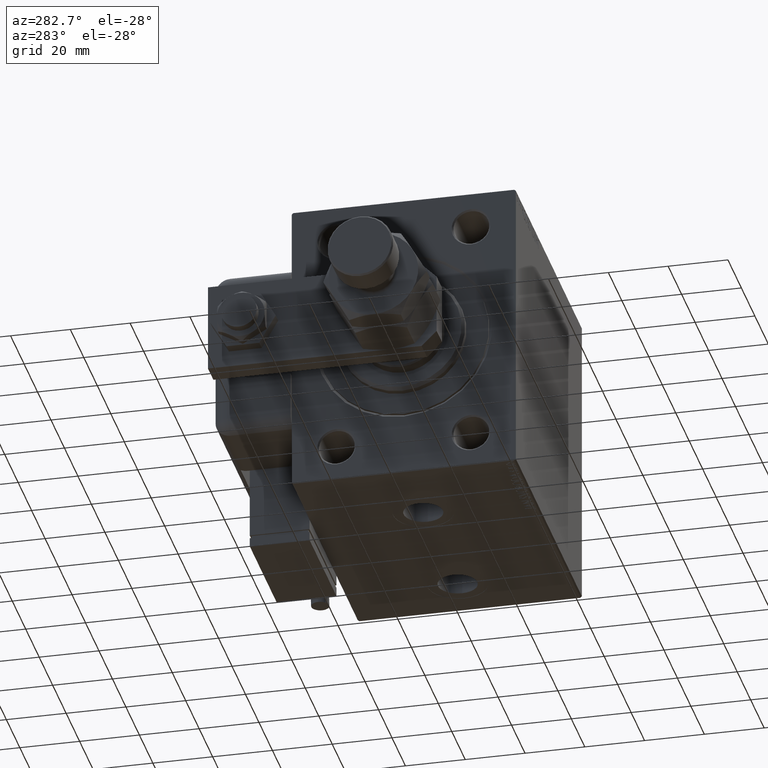
[diagram: clean part render]
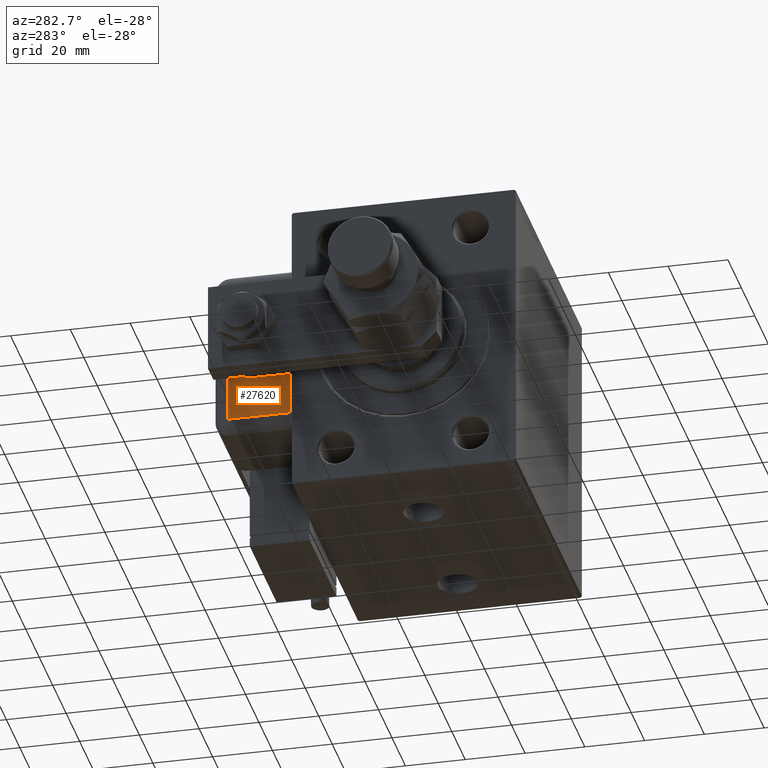
[diagram: same view with one face highlighted and labeled with its STEP entity id]
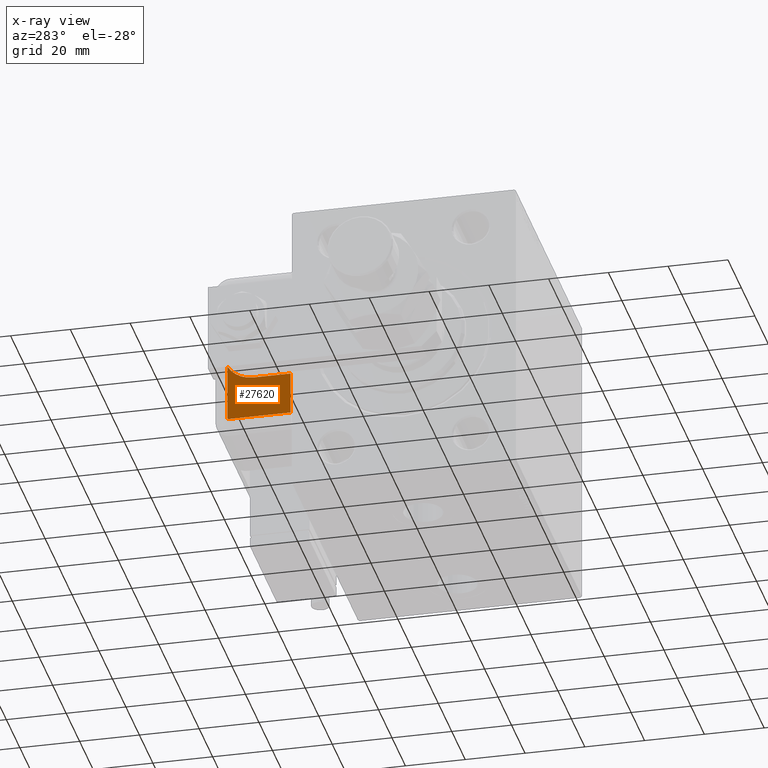
[diagram: x-ray of the same camera — body ghosted, the highlighted face saturated]
A machine part, auxiliary view. The second image highlights one B-rep face of the part: STEP entity #27620.
The next image is the same camera in x-ray: the body ghosted, the highlighted face saturated — about 0% of this face is hidden behind the body in this view.
In plain terms, the highlighted planar face has unit normal (-1, 0, 0).
Its self-contained STEP definition (entity closure, byte-faithful):
#567 = DIRECTION ( 'NONE',  ( 0.000000000000000000, 0.000000000000000000, 1.000000000000000000 ) ) ;
#795 = CARTESIAN_POINT ( 'NONE',  ( -24.41742430504415751, -1.040834085586084257E-14, 102.0000000000000142 ) ) ;
#4292 = CARTESIAN_POINT ( 'NONE',  ( -24.41742430504416106, 20.79999999999998295, 102.0000000000000142 ) ) ;
#4694 = EDGE_CURVE ( 'NONE', #8566, #32723, #41069, .T. ) ;
#5605 = EDGE_CURVE ( 'NONE', #37952, #17962, #35098, .T. ) ;
#5792 = ORIENTED_EDGE ( 'NONE', *, *, #47110, .T. ) ;
#6595 = EDGE_CURVE ( 'NONE', #37952, #8566, #47572, .T. ) ;
#8566 = VERTEX_POINT ( 'NONE', #16651 ) ;
#10589 = DIRECTION ( 'NONE',  ( 0.000000000000000000, 0.000000000000000000, 1.000000000000000000 ) ) ;
#11521 = CARTESIAN_POINT ( 'NONE',  ( -28.99999999999999645, -9.421223957302265857E-15, 102.0000000000000142 ) ) ;
#12142 = DIRECTION ( 'NONE',  ( 1.000000000000000000, 0.000000000000000000, 0.000000000000000000 ) ) ;
#12554 = VECTOR ( 'NONE', #58398, 1000.000000000000000 ) ;
#14033 = CARTESIAN_POINT ( 'NONE',  ( 23.99999999999999289, 20.79999999999998295, 102.0000000000000142 ) ) ;
#16651 = CARTESIAN_POINT ( 'NONE',  ( -23.99999999999999645, 21.21742430504414045, 102.0000000000000142 ) ) ;
#17054 = AXIS2_PLACEMENT_3D ( 'NONE', #56648, #23428, #23125 ) ;
#17478 = VECTOR ( 'NONE', #12142, 1000.000000000000000 ) ;
#17962 = VERTEX_POINT ( 'NONE', #50321 ) ;
#20900 = LINE ( 'NONE', #11521, #17478 ) ;
#22818 = VECTOR ( 'NONE', #45757, 1000.000000000000000 ) ;
#23125 = DIRECTION ( 'NONE',  ( 1.000000000000000000, 0.000000000000000000, 0.000000000000000000 ) ) ;
#23428 = DIRECTION ( 'NONE',  ( 0.000000000000000000, 0.000000000000000000, 1.000000000000000000 ) ) ;
#24224 = EDGE_CURVE ( 'NONE', #17962, #42077, #54632, .T. ) ;
#26100 = CARTESIAN_POINT ( 'NONE',  ( -10.00000000000000178, -8.673617379884035472E-16, 102.0000000000000142 ) ) ;
#26314 = LINE ( 'NONE', #45432, #22818 ) ;
#27620 = ADVANCED_FACE ( 'NONE', ( #43745 ), #43434, .T. ) ;
#27672 = AXIS2_PLACEMENT_3D ( 'NONE', #14033, #567, #28117 ) ;
#28098 = AXIS2_PLACEMENT_3D ( 'NONE', #34355, #10589, #29964 ) ;
#28117 = DIRECTION ( 'NONE',  ( 1.000000000000000000, 0.000000000000000000, -0.000000000000000000 ) ) ;
#29964 = DIRECTION ( 'NONE',  ( 1.000000000000000000, 0.000000000000000000, 0.000000000000000000 ) ) ;
#30654 = EDGE_CURVE ( 'NONE', #32723, #59282, #26314, .T. ) ;
#32723 = VERTEX_POINT ( 'NONE', #4292 ) ;
#34355 = CARTESIAN_POINT ( 'NONE',  ( -1.734723475976807094E-15, 12.49999964024999599, 102.0000000000000142 ) ) ;
#35098 = CIRCLE ( 'NONE', #28098, 10.00000000000000178 ) ;
#37952 = VERTEX_POINT ( 'NONE', #39873 ) ;
#38030 = ORIENTED_EDGE ( 'NONE', *, *, #30654, .T. ) ;
#39873 = CARTESIAN_POINT ( 'NONE',  ( -4.899643580265686360, 21.21742430504414045, 102.0000000000000142 ) ) ;
#40269 = CARTESIAN_POINT ( 'NONE',  ( -10.00000000000000178, -8.673617379884035472E-16, 102.0000000000000142 ) ) ;
#40970 = EDGE_LOOP ( 'NONE', ( #44475, #60507, #43042, #56535, #38030, #5792 ) ) ;
#41069 = CIRCLE ( 'NONE', #17054, 0.4174243050441631131 ) ;
#42077 = VERTEX_POINT ( 'NONE', #40269 ) ;
#43042 = ORIENTED_EDGE ( 'NONE', *, *, #6595, .T. ) ;
#43434 = PLANE ( 'NONE',  #27672 ) ;
#43745 = FACE_OUTER_BOUND ( 'NONE', #40970, .T. ) ;
#44475 = ORIENTED_EDGE ( 'NONE', *, *, #24224, .F. ) ;
#45432 = CARTESIAN_POINT ( 'NONE',  ( -24.41742430504415751, -1.040834085586084257E-14, 102.0000000000000142 ) ) ;
#45757 = DIRECTION ( 'NONE',  ( -0.000000000000000000, -1.000000000000000000, 0.000000000000000000 ) ) ;
#47110 = EDGE_CURVE ( 'NONE', #59282, #42077, #20900, .T. ) ;
#47572 = LINE ( 'NONE', #52568, #49149 ) ;
#49149 = VECTOR ( 'NONE', #56348, 1000.000000000000000 ) ;
#50321 = CARTESIAN_POINT ( 'NONE',  ( -10.00000000000000355, 12.49999964024999599, 102.0000000000000142 ) ) ;
#52568 = CARTESIAN_POINT ( 'NONE',  ( -23.99999999999999289, 21.21742430504414045, 102.0000000000000142 ) ) ;
#54632 = LINE ( 'NONE', #26100, #12554 ) ;
#56348 = DIRECTION ( 'NONE',  ( -1.000000000000000000, 0.000000000000000000, -0.000000000000000000 ) ) ;
#56535 = ORIENTED_EDGE ( 'NONE', *, *, #4694, .T. ) ;
#56648 = CARTESIAN_POINT ( 'NONE',  ( -23.99999999999999645, 20.79999999999998295, 102.0000000000000142 ) ) ;
#58398 = DIRECTION ( 'NONE',  ( 1.387778820721720319E-16, -1.000000000000000000, -0.000000000000000000 ) ) ;
#59282 = VERTEX_POINT ( 'NONE', #795 ) ;
#60507 = ORIENTED_EDGE ( 'NONE', *, *, #5605, .F. ) ;